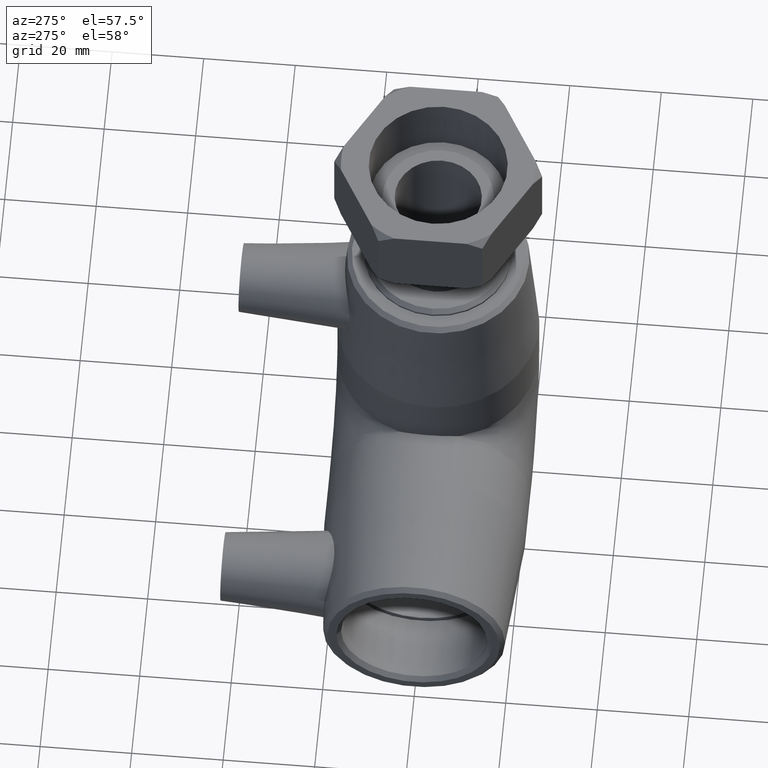
[diagram: clean part render]
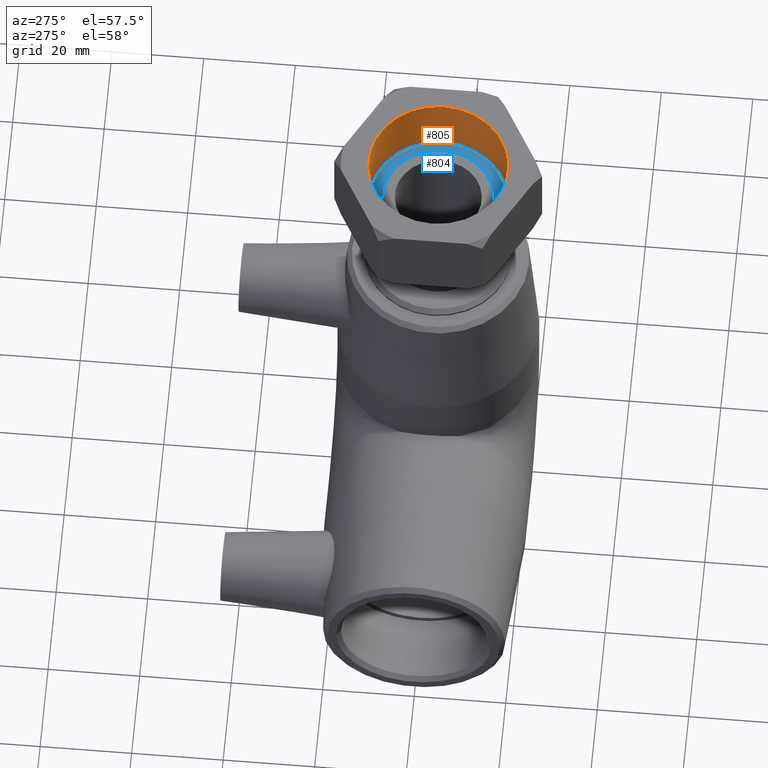
[diagram: same view with the hole feature highlighted: cylindrical wall and planar end face, labeled with their STEP entity ids]
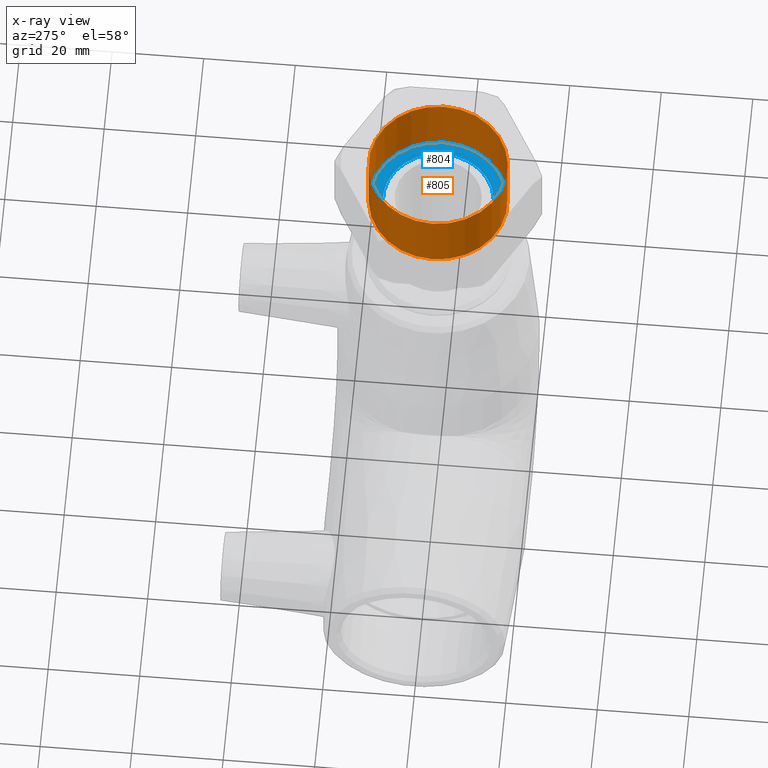
[diagram: x-ray of the same camera — body ghosted, the hole faces saturated]
A machine part, auxiliary view. The highlighted faces form one hole feature of diameter 30.291 mm: the cylindrical wall (entity #805, orange) and its adjacent planar end face (entity #804, blue) — they share a circular edge in the B-rep.
The next image is the same camera in x-ray (body ghosted, the hole faces saturated) — the bore reads through the body.
Wall:
#85=CYLINDRICAL_SURFACE('',#906,15.1455);
#140=FACE_BOUND('',#283,.T.);
#198=FACE_OUTER_BOUND('',#282,.T.);
#282=EDGE_LOOP('',(#700));
#283=EDGE_LOOP('',(#701));
#339=CIRCLE('',#870,15.1455);
#358=CIRCLE('',#905,15.1455);
#415=VERTEX_POINT('',#1360);
#436=VERTEX_POINT('',#1484);
#511=EDGE_CURVE('',#415,#415,#339,.T.);
#532=EDGE_CURVE('',#436,#436,#358,.T.);
#700=ORIENTED_EDGE('',*,*,#511,.F.);
#701=ORIENTED_EDGE('',*,*,#532,.T.);
#805=ADVANCED_FACE('',(#198,#140),#85,.F.);
#870=AXIS2_PLACEMENT_3D('',#1361,#1042,#1043);
#905=AXIS2_PLACEMENT_3D('',#1485,#1112,#1113);
#906=AXIS2_PLACEMENT_3D('',#1486,#1114,#1115);
#1042=DIRECTION('center_axis',(-2.548052843402E-16,0.,-1.));
#1043=DIRECTION('ref_axis',(1.,0.,-2.548052843402E-16));
#1112=DIRECTION('center_axis',(-2.548052843402E-16,0.,-1.));
#1113=DIRECTION('ref_axis',(1.,0.,-2.548052843402E-16));
#1114=DIRECTION('center_axis',(-2.548052843402E-16,0.,-1.));
#1115=DIRECTION('ref_axis',(-1.,0.,3.37024318553672E-16));
#1360=CARTESIAN_POINT('',(-15.1455,0.,97.));
#1361=CARTESIAN_POINT('Origin',(2.47161125809994E-14,0.,97.));
#1484=CARTESIAN_POINT('',(-15.1455,0.,82.6));
#1485=CARTESIAN_POINT('Origin',(2.10469164865005E-14,0.,82.6));
#1486=CARTESIAN_POINT('Origin',(2.288151453375E-14,0.,89.8));
End face:
#108=PLANE('',#904);
#139=FACE_BOUND('',#281,.T.);
#197=FACE_OUTER_BOUND('',#280,.T.);
#280=EDGE_LOOP('',(#698));
#281=EDGE_LOOP('',(#699));
#357=CIRCLE('',#903,12.1164);
#358=CIRCLE('',#905,15.1455);
#435=VERTEX_POINT('',#1481);
#436=VERTEX_POINT('',#1484);
#531=EDGE_CURVE('',#435,#435,#357,.T.);
#532=EDGE_CURVE('',#436,#436,#358,.T.);
#698=ORIENTED_EDGE('',*,*,#532,.F.);
#699=ORIENTED_EDGE('',*,*,#531,.T.);
#804=ADVANCED_FACE('',(#197,#139),#108,.T.);
#903=AXIS2_PLACEMENT_3D('',#1482,#1108,#1109);
#904=AXIS2_PLACEMENT_3D('',#1483,#1110,#1111);
#905=AXIS2_PLACEMENT_3D('',#1485,#1112,#1113);
#1108=DIRECTION('center_axis',(-2.548052843402E-16,0.,-1.));
#1109=DIRECTION('ref_axis',(1.,0.,-2.548052843402E-16));
#1110=DIRECTION('center_axis',(2.548052843402E-16,0.,1.));
#1111=DIRECTION('ref_axis',(1.,0.,0.));
#1112=DIRECTION('center_axis',(-2.548052843402E-16,0.,-1.));
#1113=DIRECTION('ref_axis',(1.,0.,-2.548052843402E-16));
#1481=CARTESIAN_POINT('',(-12.1164,0.,82.6));
#1482=CARTESIAN_POINT('Origin',(2.10469164865005E-14,0.,82.6));
#1483=CARTESIAN_POINT('Origin',(-15.1455,0.,82.6));
#1484=CARTESIAN_POINT('',(-15.1455,0.,82.6));
#1485=CARTESIAN_POINT('Origin',(2.10469164865005E-14,0.,82.6));